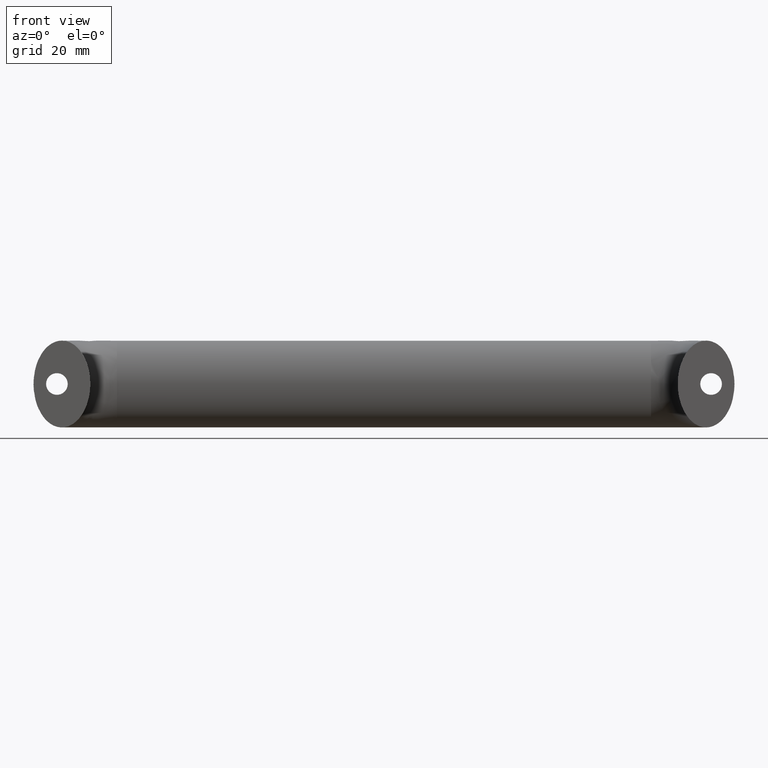
[diagram: clean part render]
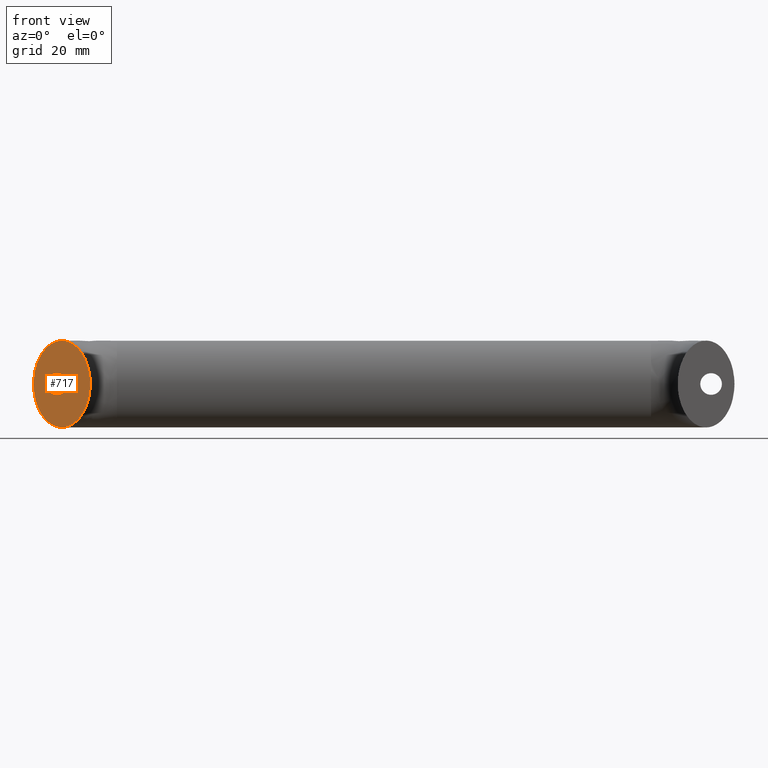
[diagram: same view with one face highlighted and labeled with its STEP entity id]
A machine part, front view. The second image highlights one B-rep face of the part: STEP entity #717.
In plain terms, the highlighted planar face has unit normal (0, 1, 0).
Its self-contained STEP definition (entity closure, byte-faithful):
#111=FACE_BOUND('',#275,.T.);
#137=CIRCLE('',#773,3.25);
#161=PLANE('',#803);
#210=FACE_OUTER_BOUND('',#274,.T.);
#274=EDGE_LOOP('',(#662));
#275=EDGE_LOOP('',(#663));
#310=ELLIPSE('',#802,13.,8.5);
#348=VERTEX_POINT('',#1465);
#372=VERTEX_POINT('',#1875);
#428=EDGE_CURVE('',#348,#348,#137,.T.);
#469=EDGE_CURVE('',#372,#372,#310,.T.);
#662=ORIENTED_EDGE('',*,*,#469,.F.);
#663=ORIENTED_EDGE('',*,*,#428,.T.);
#717=ADVANCED_FACE('',(#210,#111),#161,.F.);
#773=AXIS2_PLACEMENT_3D('',#1466,#923,#924);
#802=AXIS2_PLACEMENT_3D('',#1877,#992,#993);
#803=AXIS2_PLACEMENT_3D('',#1878,#994,#995);
#923=DIRECTION('center_axis',(0.,1.,0.));
#924=DIRECTION('ref_axis',(1.,0.,0.));
#992=DIRECTION('center_axis',(0.,1.,0.));
#993=DIRECTION('ref_axis',(0.,0.,-1.));
#994=DIRECTION('center_axis',(0.,1.,0.));
#995=DIRECTION('ref_axis',(0.,0.,1.));
#1465=CARTESIAN_POINT('',(-4.75000000000002,0.,1.02878864022942E-14));
#1466=CARTESIAN_POINT('Origin',(-1.50000000000002,0.,9.88987619257135E-15));
#1875=CARTESIAN_POINT('',(1.04094977927525E-15,-1.47451495458029E-15,13.));
#1877=CARTESIAN_POINT('Origin',(0.,0.,0.));
#1878=CARTESIAN_POINT('Origin',(0.,0.,0.));